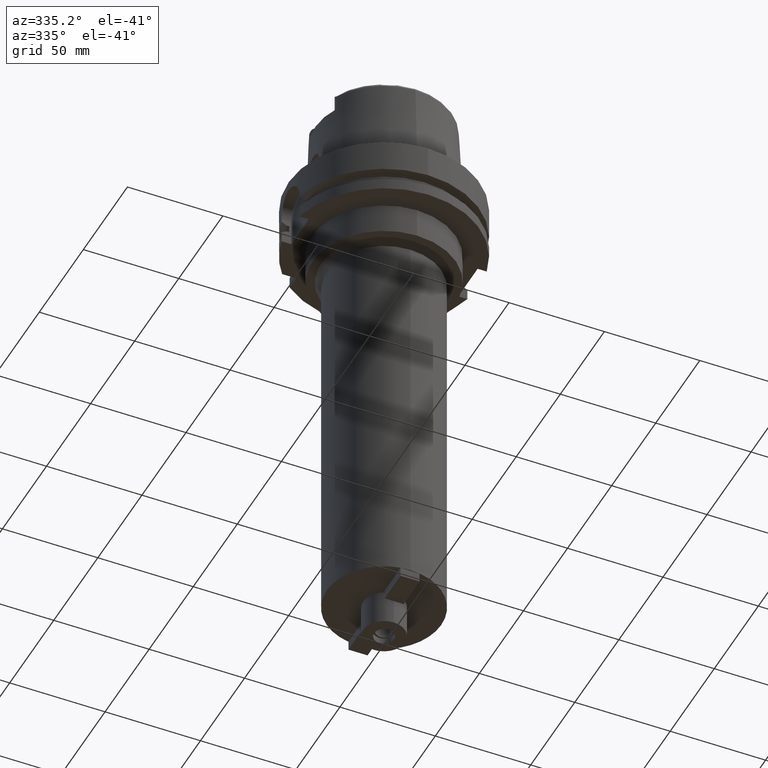
[diagram: clean part render]
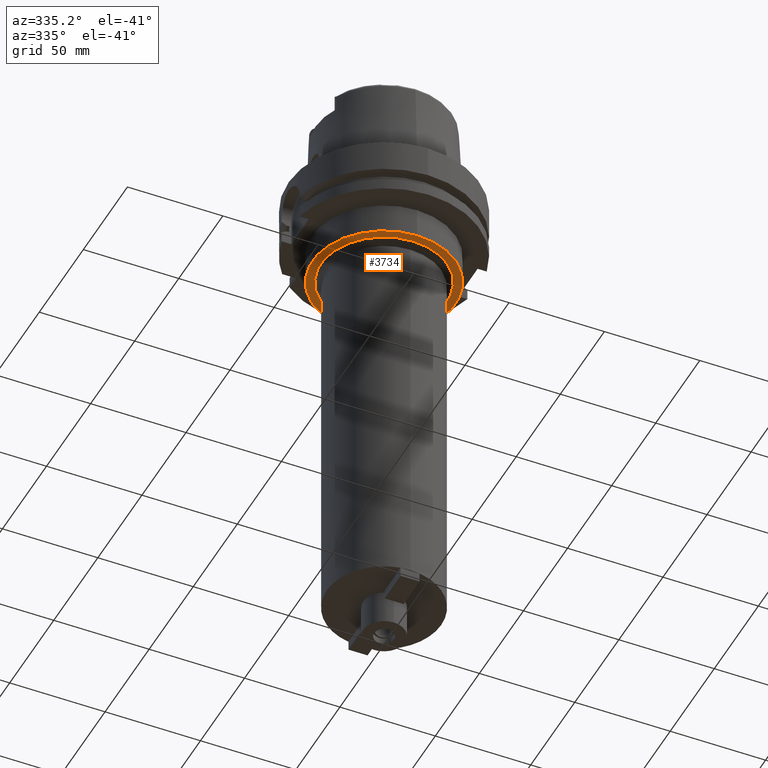
[diagram: same view with one face highlighted and labeled with its STEP entity id]
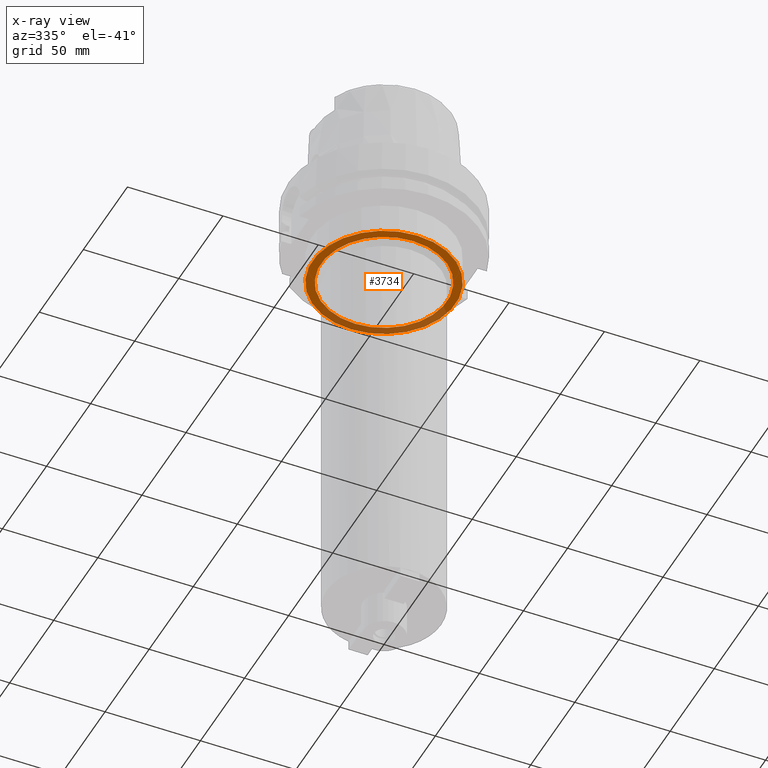
[diagram: x-ray of the same camera — body ghosted, the highlighted face saturated]
A machine part, auxiliary view. The second image highlights one B-rep face of the part: STEP entity #3734.
The next image is the same camera in x-ray: the body ghosted, the highlighted face saturated — about 31% of this face is hidden behind the body in this view.
In plain terms, the highlighted planar face has unit normal (0, 0, 1).
Its self-contained STEP definition (entity closure, byte-faithful):
#1229=CARTESIAN_POINT('',(0.E0,0.E0,-4.5E1));
#1230=DIRECTION('',(0.E0,0.E0,1.E0));
#1231=DIRECTION('',(0.E0,-1.E0,0.E0));
#1232=AXIS2_PLACEMENT_3D('',#1229,#1230,#1231);
#1237=CARTESIAN_POINT('',(0.E0,0.E0,-4.5E1));
#1238=DIRECTION('',(0.E0,0.E0,1.E0));
#1239=DIRECTION('',(0.E0,1.E0,0.E0));
#1240=AXIS2_PLACEMENT_3D('',#1237,#1238,#1239);
#1245=CARTESIAN_POINT('',(0.E0,0.E0,-4.5E1));
#1246=DIRECTION('',(0.E0,0.E0,-1.E0));
#1247=DIRECTION('',(0.E0,-1.E0,0.E0));
#1248=AXIS2_PLACEMENT_3D('',#1245,#1246,#1247);
#1253=CARTESIAN_POINT('',(0.E0,0.E0,-4.5E1));
#1254=DIRECTION('',(0.E0,0.E0,-1.E0));
#1255=DIRECTION('',(0.E0,1.E0,0.E0));
#1256=AXIS2_PLACEMENT_3D('',#1253,#1254,#1255);
#2628=CARTESIAN_POINT('',(0.E0,3.3E1,-4.5E1));
#2629=VERTEX_POINT('',#2628);
#2630=CARTESIAN_POINT('',(0.E0,-3.3E1,-4.5E1));
#2631=VERTEX_POINT('',#2630);
#2632=CARTESIAN_POINT('',(0.E0,-3.75E1,-4.5E1));
#2633=CARTESIAN_POINT('',(0.E0,3.75E1,-4.5E1));
#2634=VERTEX_POINT('',#2632);
#2635=VERTEX_POINT('',#2633);
#3719=CARTESIAN_POINT('',(0.E0,0.E0,-4.5E1));
#3720=DIRECTION('',(0.E0,0.E0,1.E0));
#3721=DIRECTION('',(0.E0,1.E0,0.E0));
#3722=AXIS2_PLACEMENT_3D('',#3719,#3720,#3721);
#3723=PLANE('',#3722);
#3725=ORIENTED_EDGE('',*,*,#3724,.T.);
#3727=ORIENTED_EDGE('',*,*,#3726,.T.);
#3728=EDGE_LOOP('',(#3725,#3727));
#3729=FACE_OUTER_BOUND('',#3728,.F.);
#3730=ORIENTED_EDGE('',*,*,#3698,.T.);
#3731=ORIENTED_EDGE('',*,*,#3714,.T.);
#3732=EDGE_LOOP('',(#3730,#3731));
#3733=FACE_BOUND('',#3732,.F.);
#1233=CIRCLE('',#1232,3.75E1);
#1241=CIRCLE('',#1240,3.75E1);
#1249=CIRCLE('',#1248,3.3E1);
#1257=CIRCLE('',#1256,3.3E1);
#3698=EDGE_CURVE('',#2631,#2629,#1249,.T.);
#3714=EDGE_CURVE('',#2629,#2631,#1257,.T.);
#3724=EDGE_CURVE('',#2634,#2635,#1233,.T.);
#3726=EDGE_CURVE('',#2635,#2634,#1241,.T.);
#3734=ADVANCED_FACE('',(#3729,#3733),#3723,.F.);